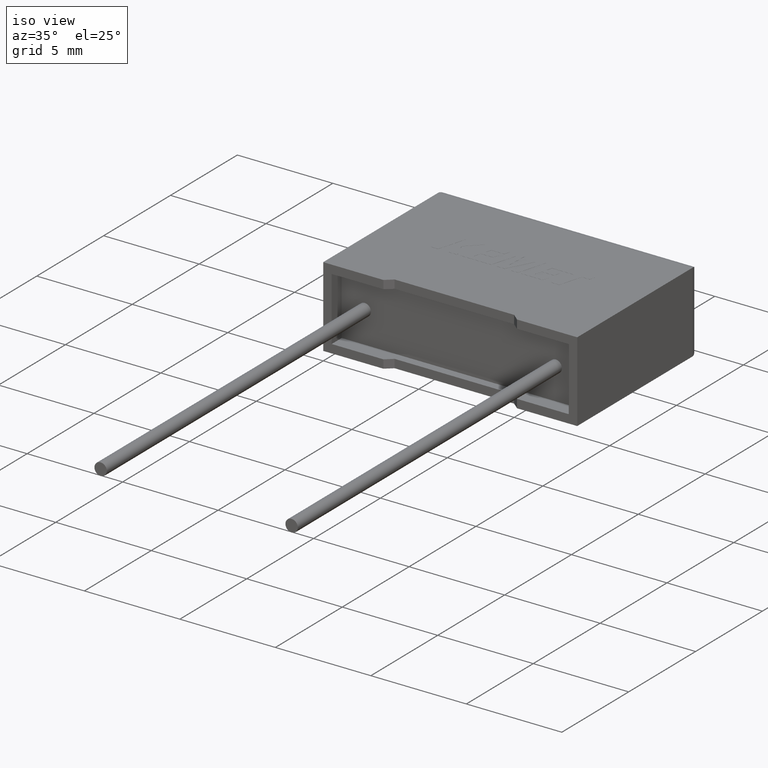
[diagram: clean part render]
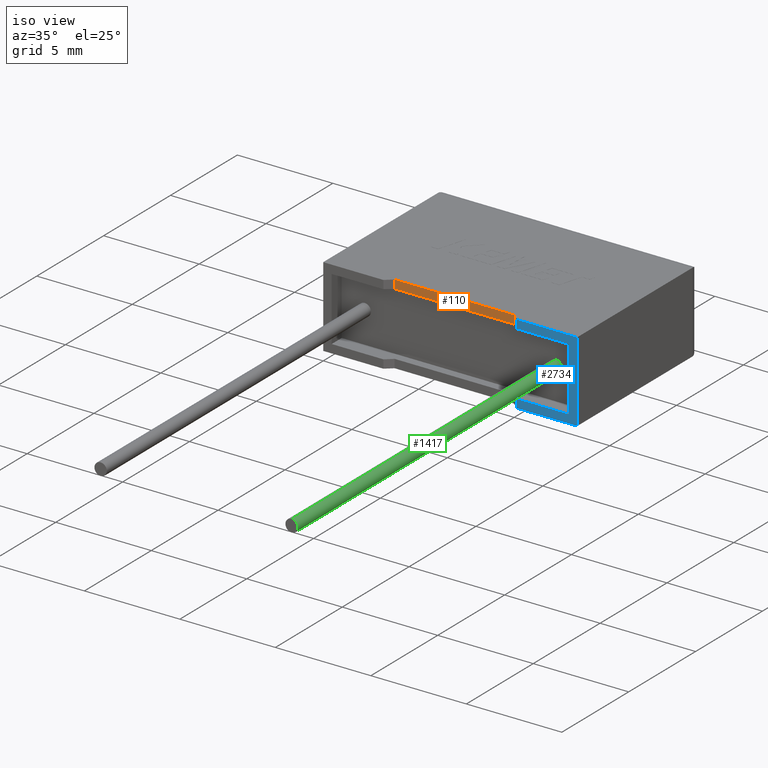
[diagram: same view with three faces highlighted in distinct colors, each labeled with its STEP entity id]
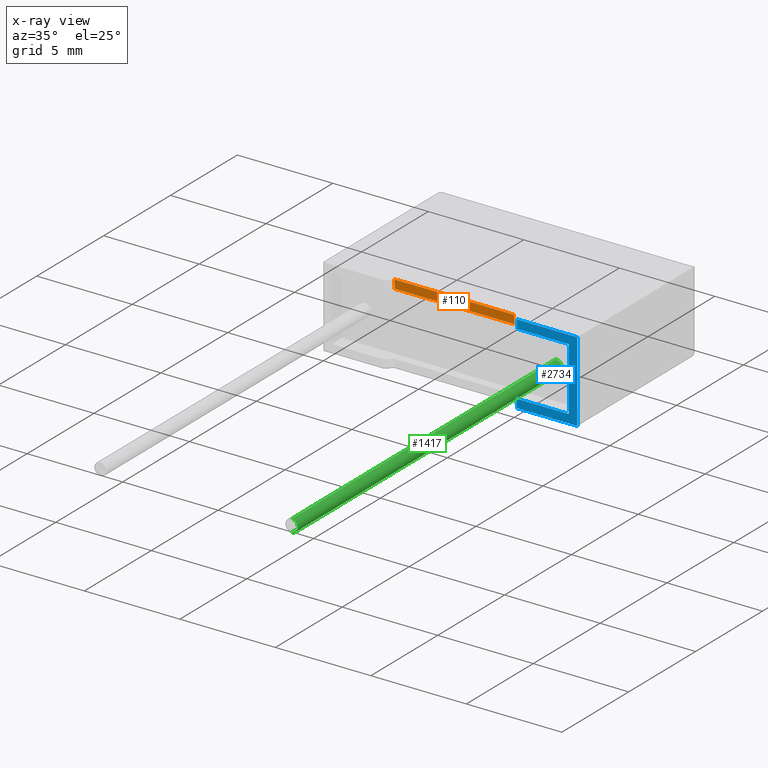
[diagram: x-ray of the same camera — body ghosted, the three highlighted faces saturated]
A machine part, iso view with three faces highlighted in distinct colors.
The next image is the same camera in x-ray (body ghosted, the three faces saturated) — at least one of them is partly hidden behind the body in this view.
Their STEP definitions:

[orange] entity #110 — the highlighted planar face has unit normal (-0, 1, 0).
#26 = LINE ( 'NONE', #1688, #2019 ) ;
#95 = LINE ( 'NONE', #777, #1975 ) ;
#98 = VERTEX_POINT ( 'NONE', #2326 ) ;
#105 = VECTOR ( 'NONE', #2268, 1000.000000000000000 ) ;
#110 = ADVANCED_FACE ( 'NONE', ( #666 ), #2305, .F. ) ;
#243 = DIRECTION ( 'NONE',  ( -1.212111444810586435E-16, 1.000000000000000000, 0.000000000000000000 ) ) ;
#269 = DIRECTION ( 'NONE',  ( -1.000000000000000000, -1.212111444810586435E-16, -1.048100911135427464E-16 ) ) ;
#422 = LINE ( 'NONE', #670, #1320 ) ;
#459 = EDGE_CURVE ( 'NONE', #1801, #98, #26, .T. ) ;
#561 = VERTEX_POINT ( 'NONE', #792 ) ;
#633 = EDGE_CURVE ( 'NONE', #1801, #561, #2486, .T. ) ;
#666 = FACE_OUTER_BOUND ( 'NONE', #1632, .T. ) ;
#670 = CARTESIAN_POINT ( 'NONE',  ( 6.650000000000000355, 0.3137680000000003244, 4.200000000000000178 ) ) ;
#677 = EDGE_CURVE ( 'NONE', #561, #686, #422, .T. ) ;
#686 = VERTEX_POINT ( 'NONE', #2062 ) ;
#777 = CARTESIAN_POINT ( 'NONE',  ( 3.519341000000000719, 0.3137679999999999914, 0.000000000000000000 ) ) ;
#792 = CARTESIAN_POINT ( 'NONE',  ( 9.780658999999999992, 0.3137679999999999914, 4.200000000000000178 ) ) ;
#1305 = CARTESIAN_POINT ( 'NONE',  ( 9.780658999999999992, 0.3137679999999999914, 0.000000000000000000 ) ) ;
#1320 = VECTOR ( 'NONE', #2551, 1000.000000000000000 ) ;
#1632 = EDGE_LOOP ( 'NONE', ( #1860, #1940, #2876, #1655 ) ) ;
#1655 = ORIENTED_EDGE ( 'NONE', *, *, #2399, .F. ) ;
#1686 = DIRECTION ( 'NONE',  ( -0.000000000000000000, -0.000000000000000000, 1.000000000000000000 ) ) ;
#1688 = CARTESIAN_POINT ( 'NONE',  ( 12.85666671100000080, 0.3137680000000011016, 3.756666711000000713 ) ) ;
#1796 = CARTESIAN_POINT ( 'NONE',  ( 9.780658999999999992, 0.3137679999999999914, 3.756666711000000713 ) ) ;
#1801 = VERTEX_POINT ( 'NONE', #1796 ) ;
#1860 = ORIENTED_EDGE ( 'NONE', *, *, #459, .F. ) ;
#1911 = AXIS2_PLACEMENT_3D ( 'NONE', #2398, #243, #2109 ) ;
#1940 = ORIENTED_EDGE ( 'NONE', *, *, #633, .T. ) ;
#1975 = VECTOR ( 'NONE', #1686, 1000.000000000000000 ) ;
#2019 = VECTOR ( 'NONE', #269, 1000.000000000000000 ) ;
#2062 = CARTESIAN_POINT ( 'NONE',  ( 3.519341000000000719, 0.3137679999999999914, 4.200000000000000178 ) ) ;
#2109 = DIRECTION ( 'NONE',  ( -1.000000000000000000, -1.212111444810586435E-16, 0.000000000000000000 ) ) ;
#2268 = DIRECTION ( 'NONE',  ( -0.000000000000000000, -0.000000000000000000, 1.000000000000000000 ) ) ;
#2305 = PLANE ( 'NONE',  #1911 ) ;
#2326 = CARTESIAN_POINT ( 'NONE',  ( 3.519341000000000719, 0.3137679999999999914, 3.756666710999999825 ) ) ;
#2398 = CARTESIAN_POINT ( 'NONE',  ( 6.650000000000000355, 0.3137680000000003244, 0.000000000000000000 ) ) ;
#2399 = EDGE_CURVE ( 'NONE', #98, #686, #95, .T. ) ;
#2486 = LINE ( 'NONE', #1305, #105 ) ;
#2551 = DIRECTION ( 'NONE',  ( -1.000000000000000000, -1.212111444810586435E-16, 0.000000000000000000 ) ) ;
#2876 = ORIENTED_EDGE ( 'NONE', *, *, #677, .T. ) ;

[blue] entity #2734 — the highlighted planar face has unit normal (0, 1, 0).
#25 = ORIENTED_EDGE ( 'NONE', *, *, #654, .F. ) ;
#27 = ORIENTED_EDGE ( 'NONE', *, *, #48, .F. ) ;
#48 = EDGE_CURVE ( 'NONE', #1111, #2587, #1299, .T. ) ;
#85 = EDGE_CURVE ( 'NONE', #1586, #1111, #2496, .T. ) ;
#191 = VECTOR ( 'NONE', #2044, 1000.000000000000000 ) ;
#201 = VECTOR ( 'NONE', #905, 1000.000000000000000 ) ;
#425 = ORIENTED_EDGE ( 'NONE', *, *, #1496, .T. ) ;
#444 = LINE ( 'NONE', #1599, #2821 ) ;
#458 = VERTEX_POINT ( 'NONE', #1939 ) ;
#471 = CARTESIAN_POINT ( 'NONE',  ( 10.14999999999999858, 1.928818708657081098E-16, 0.000000000000000000 ) ) ;
#551 = AXIS2_PLACEMENT_3D ( 'NONE', #668, #2549, #1358 ) ;
#568 = CARTESIAN_POINT ( 'NONE',  ( 10.14999999999999858, 1.928818708657081098E-16, 0.4433332890000000193 ) ) ;
#588 = ORIENTED_EDGE ( 'NONE', *, *, #1689, .F. ) ;
#654 = EDGE_CURVE ( 'NONE', #932, #458, #1498, .T. ) ;
#668 = CARTESIAN_POINT ( 'NONE',  ( 0.000000000000000000, 0.000000000000000000, 4.200000000000000178 ) ) ;
#728 = DIRECTION ( 'NONE',  ( -0.000000000000000000, -0.000000000000000000, 1.000000000000000000 ) ) ;
#776 = CARTESIAN_POINT ( 'NONE',  ( 13.30000000000000071, 0.000000000000000000, 4.200000000000000178 ) ) ;
#837 = CARTESIAN_POINT ( 'NONE',  ( 12.85666671100000080, 0.000000000000000000, 3.756666711000000713 ) ) ;
#852 = CARTESIAN_POINT ( 'NONE',  ( 12.85666671100000080, 0.000000000000000000, 3.756666711000000713 ) ) ;
#905 = DIRECTION ( 'NONE',  ( 1.000000000000000000, 0.000000000000000000, 8.734174259461895022E-18 ) ) ;
#932 = VERTEX_POINT ( 'NONE', #568 ) ;
#947 = PLANE ( 'NONE',  #551 ) ;
#1020 = ORIENTED_EDGE ( 'NONE', *, *, #2732, .F. ) ;
#1077 = DIRECTION ( 'NONE',  ( -0.000000000000000000, -0.000000000000000000, -1.000000000000000000 ) ) ;
#1100 = CARTESIAN_POINT ( 'NONE',  ( 0.000000000000000000, 0.000000000000000000, 0.000000000000000000 ) ) ;
#1111 = VERTEX_POINT ( 'NONE', #1197 ) ;
#1126 = VECTOR ( 'NONE', #1077, 1000.000000000000000 ) ;
#1197 = CARTESIAN_POINT ( 'NONE',  ( 13.30000000000000071, 0.000000000000000000, 4.200000000000000178 ) ) ;
#1299 = LINE ( 'NONE', #776, #1126 ) ;
#1358 = DIRECTION ( 'NONE',  ( 0.000000000000000000, -0.000000000000000000, 1.000000000000000000 ) ) ;
#1378 = VECTOR ( 'NONE', #2369, 1000.000000000000000 ) ;
#1451 = EDGE_CURVE ( 'NONE', #2016, #932, #1929, .T. ) ;
#1496 = EDGE_CURVE ( 'NONE', #2016, #2587, #2199, .T. ) ;
#1498 = LINE ( 'NONE', #2441, #201 ) ;
#1540 = LINE ( 'NONE', #837, #1725 ) ;
#1555 = DIRECTION ( 'NONE',  ( 1.000000000000000000, 0.000000000000000000, 0.000000000000000000 ) ) ;
#1586 = VERTEX_POINT ( 'NONE', #2504 ) ;
#1599 = CARTESIAN_POINT ( 'NONE',  ( 10.14999999999999858, 1.928818708657081098E-16, 0.000000000000000000 ) ) ;
#1678 = CARTESIAN_POINT ( 'NONE',  ( 10.14999999999999858, 1.928818708657081098E-16, 0.000000000000000000 ) ) ;
#1684 = VECTOR ( 'NONE', #1555, 1000.000000000000000 ) ;
#1689 = EDGE_CURVE ( 'NONE', #458, #2069, #1858, .T. ) ;
#1722 = CARTESIAN_POINT ( 'NONE',  ( 12.85666671100000080, 0.000000000000000000, 0.4433332890000000193 ) ) ;
#1725 = VECTOR ( 'NONE', #1986, 1000.000000000000000 ) ;
#1790 = CARTESIAN_POINT ( 'NONE',  ( 10.14999999999999858, 1.928818708657081098E-16, 3.756666711000000713 ) ) ;
#1810 = EDGE_CURVE ( 'NONE', #2069, #2139, #1540, .T. ) ;
#1812 = ORIENTED_EDGE ( 'NONE', *, *, #1451, .F. ) ;
#1858 = LINE ( 'NONE', #1722, #2018 ) ;
#1929 = LINE ( 'NONE', #471, #1378 ) ;
#1939 = CARTESIAN_POINT ( 'NONE',  ( 12.85666671100000080, 0.000000000000000000, 0.4433332890000000193 ) ) ;
#1986 = DIRECTION ( 'NONE',  ( -1.000000000000000000, 0.000000000000000000, -1.048100911135427464E-16 ) ) ;
#2016 = VERTEX_POINT ( 'NONE', #1678 ) ;
#2018 = VECTOR ( 'NONE', #2438, 1000.000000000000000 ) ;
#2044 = DIRECTION ( 'NONE',  ( 1.000000000000000000, 0.000000000000000000, 0.000000000000000000 ) ) ;
#2069 = VERTEX_POINT ( 'NONE', #852 ) ;
#2139 = VERTEX_POINT ( 'NONE', #1790 ) ;
#2199 = LINE ( 'NONE', #1100, #1684 ) ;
#2224 = CARTESIAN_POINT ( 'NONE',  ( 13.30000000000000071, 0.000000000000000000, 0.000000000000000000 ) ) ;
#2250 = ORIENTED_EDGE ( 'NONE', *, *, #85, .F. ) ;
#2343 = FACE_OUTER_BOUND ( 'NONE', #2540, .T. ) ;
#2369 = DIRECTION ( 'NONE',  ( -0.000000000000000000, -0.000000000000000000, 1.000000000000000000 ) ) ;
#2438 = DIRECTION ( 'NONE',  ( 0.000000000000000000, 0.000000000000000000, 1.000000000000000000 ) ) ;
#2441 = CARTESIAN_POINT ( 'NONE',  ( 0.4433332890000000193, 0.000000000000000000, 0.4433332889999999082 ) ) ;
#2496 = LINE ( 'NONE', #2795, #191 ) ;
#2504 = CARTESIAN_POINT ( 'NONE',  ( 10.14999999999999858, 1.928818708657081098E-16, 4.200000000000000178 ) ) ;
#2540 = EDGE_LOOP ( 'NONE', ( #1812, #425, #27, #2250, #1020, #2663, #588, #25 ) ) ;
#2549 = DIRECTION ( 'NONE',  ( 0.000000000000000000, 1.000000000000000000, 0.000000000000000000 ) ) ;
#2587 = VERTEX_POINT ( 'NONE', #2224 ) ;
#2663 = ORIENTED_EDGE ( 'NONE', *, *, #1810, .F. ) ;
#2732 = EDGE_CURVE ( 'NONE', #2139, #1586, #444, .T. ) ;
#2734 = ADVANCED_FACE ( 'NONE', ( #2343 ), #947, .F. ) ;
#2795 = CARTESIAN_POINT ( 'NONE',  ( 0.000000000000000000, 0.000000000000000000, 4.200000000000000178 ) ) ;
#2821 = VECTOR ( 'NONE', #728, 1000.000000000000000 ) ;

[green] entity #1417 — the highlighted cylindrical surface (edge-blend (fillet) strip) has radius 0.325 mm, axis along (-0, 1, -0).
#11 = VECTOR ( 'NONE', #2655, 1000.000000000000000 ) ;
#45 = LINE ( 'NONE', #1915, #11 ) ;
#58 = DIRECTION ( 'NONE',  ( 0.000000000000000000, 0.000000000000000000, 1.000000000000000000 ) ) ;
#96 = EDGE_LOOP ( 'NONE', ( #111, #265, #1157, #2252 ) ) ;
#111 = ORIENTED_EDGE ( 'NONE', *, *, #807, .T. ) ;
#265 = ORIENTED_EDGE ( 'NONE', *, *, #1441, .T. ) ;
#285 = CYLINDRICAL_SURFACE ( 'NONE', #1910, 0.3250000000000006217 ) ;
#384 = CARTESIAN_POINT ( 'NONE',  ( 11.65000000000000036, -19.00000000000000000, 2.100000000000000089 ) ) ;
#613 = VERTEX_POINT ( 'NONE', #2684 ) ;
#754 = CARTESIAN_POINT ( 'NONE',  ( 11.65000000000000036, -19.00000000000000000, 2.100000000000000089 ) ) ;
#794 = VERTEX_POINT ( 'NONE', #1998 ) ;
#796 = CIRCLE ( 'NONE', #2522, 0.3250000000000003997 ) ;
#807 = EDGE_CURVE ( 'NONE', #794, #2539, #1913, .T. ) ;
#1043 = EDGE_CURVE ( 'NONE', #794, #613, #45, .T. ) ;
#1157 = ORIENTED_EDGE ( 'NONE', *, *, #1956, .T. ) ;
#1193 = FACE_OUTER_BOUND ( 'NONE', #96, .T. ) ;
#1212 = DIRECTION ( 'NONE',  ( 0.000000000000000000, 0.000000000000000000, -1.000000000000000000 ) ) ;
#1302 = DIRECTION ( 'NONE',  ( -0.000000000000000000, 1.000000000000000000, -0.000000000000000000 ) ) ;
#1368 = AXIS2_PLACEMENT_3D ( 'NONE', #384, #1302, #1985 ) ;
#1417 = ADVANCED_FACE ( 'NONE', ( #1193 ), #285, .T. ) ;
#1418 = LINE ( 'NONE', #2593, #1864 ) ;
#1439 = VERTEX_POINT ( 'NONE', #2108 ) ;
#1441 = EDGE_CURVE ( 'NONE', #2539, #1439, #1418, .T. ) ;
#1490 = CARTESIAN_POINT ( 'NONE',  ( 11.65000000000000036, 0.7500000000000006661, 2.100000000000000089 ) ) ;
#1661 = DIRECTION ( 'NONE',  ( 0.000000000000000000, -1.000000000000000000, 0.000000000000000000 ) ) ;
#1692 = DIRECTION ( 'NONE',  ( -0.000000000000000000, 1.000000000000000000, -0.000000000000000000 ) ) ;
#1864 = VECTOR ( 'NONE', #2638, 1000.000000000000000 ) ;
#1910 = AXIS2_PLACEMENT_3D ( 'NONE', #754, #1692, #58 ) ;
#1913 = CIRCLE ( 'NONE', #1368, 0.3250000000000003997 ) ;
#1915 = CARTESIAN_POINT ( 'NONE',  ( 11.65000000000000036, -19.00000000000000000, 2.425000000000001155 ) ) ;
#1956 = EDGE_CURVE ( 'NONE', #1439, #613, #796, .T. ) ;
#1985 = DIRECTION ( 'NONE',  ( 0.000000000000000000, 0.000000000000000000, -1.000000000000000000 ) ) ;
#1998 = CARTESIAN_POINT ( 'NONE',  ( 11.65000000000000036, -19.00000000000000000, 2.425000000000001155 ) ) ;
#2108 = CARTESIAN_POINT ( 'NONE',  ( 11.65000000000000036, 0.7500000000000006661, 1.774999999999999911 ) ) ;
#2252 = ORIENTED_EDGE ( 'NONE', *, *, #1043, .F. ) ;
#2285 = CARTESIAN_POINT ( 'NONE',  ( 11.65000000000000036, -19.00000000000000000, 1.774999999999999911 ) ) ;
#2522 = AXIS2_PLACEMENT_3D ( 'NONE', #1490, #1661, #1212 ) ;
#2539 = VERTEX_POINT ( 'NONE', #2285 ) ;
#2593 = CARTESIAN_POINT ( 'NONE',  ( 11.65000000000000036, -19.00000000000000000, 1.774999999999999911 ) ) ;
#2638 = DIRECTION ( 'NONE',  ( -0.000000000000000000, 1.000000000000000000, -0.000000000000000000 ) ) ;
#2655 = DIRECTION ( 'NONE',  ( -0.000000000000000000, 1.000000000000000000, -0.000000000000000000 ) ) ;
#2684 = CARTESIAN_POINT ( 'NONE',  ( 11.65000000000000036, 0.7500000000000006661, 2.425000000000001155 ) ) ;